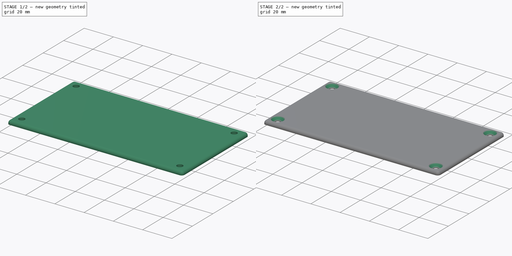
[diagram: build sequence overview — one tinted view per stage of 2, left to right]
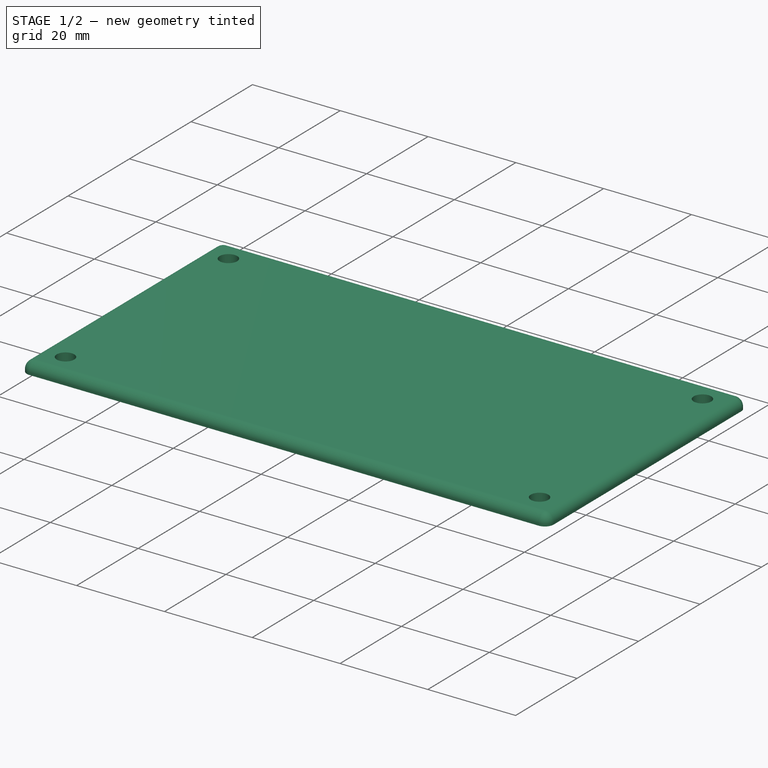
[diagram: stage 1 of 2 — iso view after this stage's code; geometry added in this stage tinted green]
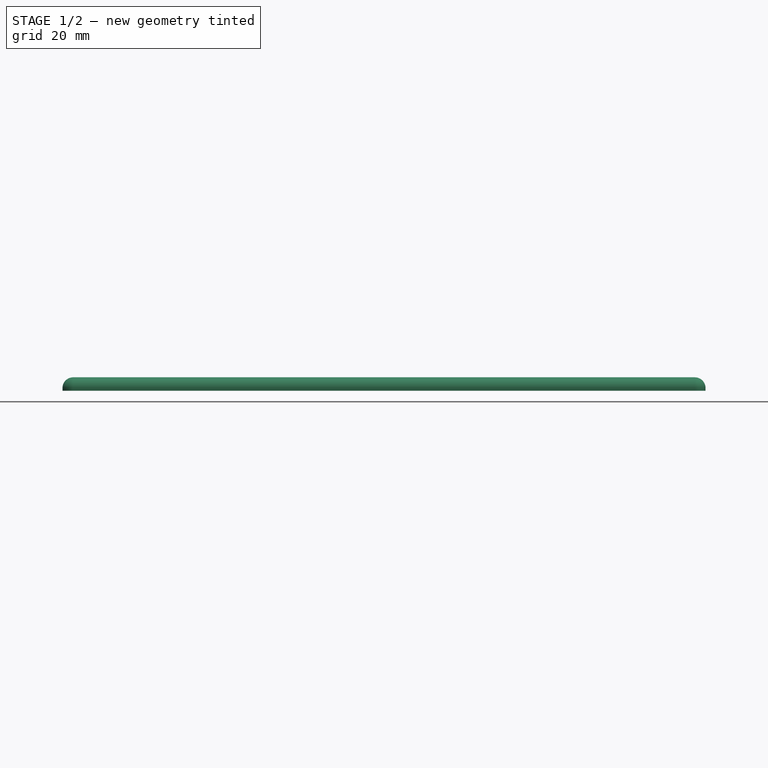
[diagram: stage 1 of 2 — front view after this stage's code; geometry added in this stage tinted green]
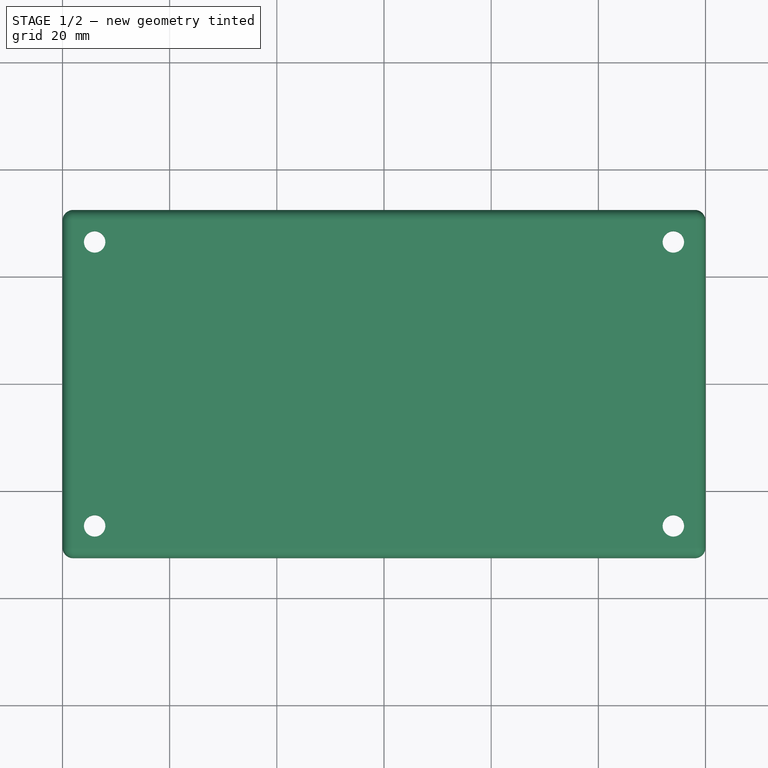
[diagram: stage 1 of 2 — top view after this stage's code; geometry added in this stage tinted green]
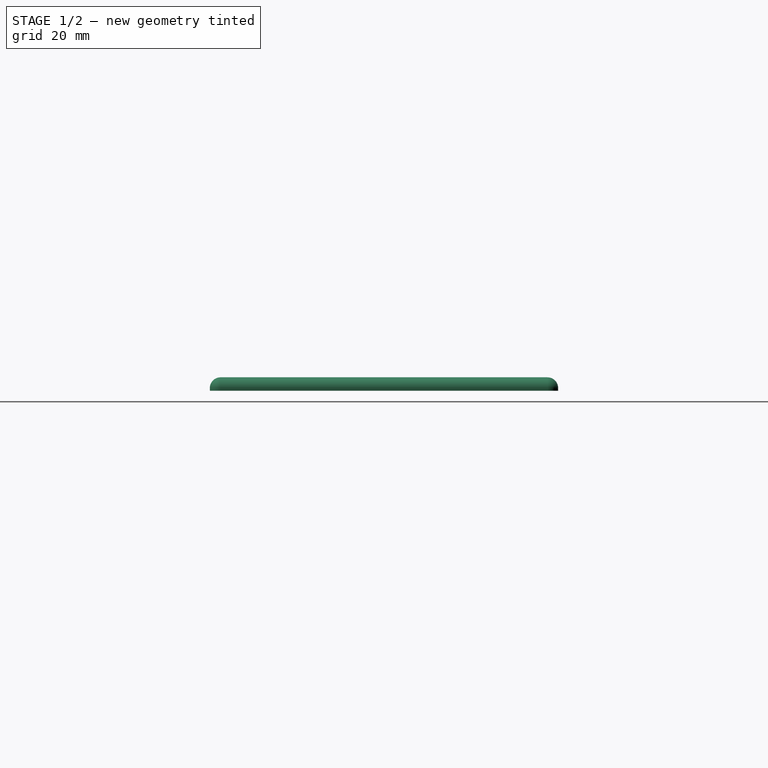
[diagram: stage 1 of 2 — right view after this stage's code; geometry added in this stage tinted green]
FCSTD DOCUMENT  (FreeCAD 0.20R29410 (Git))
Label: wall mount plate
License: All rights reserved
LicenseURL: http://en.wikipedia.org/wiki/All_rights_reserved
objects: Sketcher::SketchObject×1, PartDesign::Pad×1, PartDesign::Fillet×1, PartDesign::Chamfer×1, PartDesign::Body×1, App::Part×1
note: 8 computed .brp shape members not serialized (recipe doc carries the construction recipe); baked Part::Feature solids carry a one-line shape summary decoded from their .brp

FEATURE [Sketcher::SketchObject] Sketch
  FullyConstrained = true
  MapMode = 5
  Support = -> [XY_Plane001]
  sketch-geometry (14):
    g0: LineSegment StartX=-60 StartY=-32.5 StartZ=0 EndX=-60 EndY=32.5 EndZ=0
    g1: LineSegment StartX=-60 StartY=32.5 StartZ=0 EndX=60 EndY=32.5 EndZ=0
    g2: LineSegment StartX=60 StartY=32.5 StartZ=0 EndX=60 EndY=-32.5 EndZ=0
    g3: LineSegment StartX=60 StartY=-32.5 StartZ=0 EndX=-60 EndY=-32.5 EndZ=0
    g4: GeomPoint X=-2e-16 Y=0 Z=0
    g5: LineSegment StartX=-54 StartY=-26.5 StartZ=0 EndX=-54 EndY=26.5 EndZ=0
    g6: LineSegment StartX=-54 StartY=26.5 StartZ=0 EndX=54 EndY=26.5 EndZ=0
    g7: LineSegment StartX=54 StartY=26.5 StartZ=0 EndX=54 EndY=-26.5 EndZ=0
    g8: LineSegment StartX=54 StartY=-26.5 StartZ=0 EndX=-54 EndY=-26.5 EndZ=0
    g9: GeomPoint X=-2e-16 Y=0 Z=0
    g10: Circle CenterX=-54 CenterY=26.5 CenterZ=0 NormalX=0 NormalY=0 NormalZ=1 AngleXU=0 Radius=2
    g11: Circle CenterX=-54 CenterY=-26.5 CenterZ=0 NormalX=0 NormalY=0 NormalZ=1 AngleXU=0 Radius=2
    g12: Circle CenterX=54 CenterY=-26.5 CenterZ=0 NormalX=0 NormalY=0 NormalZ=1 AngleXU=0 Radius=2
    g13: Circle CenterX=54 CenterY=26.5 CenterZ=0 NormalX=0 NormalY=0 NormalZ=1 AngleXU=0 Radius=2
  constraints (32):
    c: Coincident(g0,g1)
    c: Coincident(g1,g2)
    c: Coincident(g2,g3)
    c: Coincident(g3,g0)
    c: Horizontal(g1)
    c: Horizontal(g3)
    c: Vertical(g0)
    c: Vertical(g2)
    c: Symmetric(g1,g0,g4)
    c: Coincident(g4,g-1)
    c: Distance(g0) = 65
    c: Distance(g1) = 120
    c: Coincident(g5,g6)
    c: Coincident(g6,g7)
    c: Coincident(g7,g8)
    c: Coincident(g8,g5)
    c: Horizontal(g6)
    c: Horizontal(g8)
    c: Vertical(g5)
    c: Vertical(g7)
    c: Symmetric(g6,g5,g9)
    c: Coincident(g9,g4)
    c: Coincident(g10,g5)
    c: Coincident(g11,g5)
    c: Coincident(g12,g7)
    c: Coincident(g13,g6)
    c: Distance(g5) = 53
    c: Distance(g6) = 108
    c: Diameter(g10) = 4
    c: Equal(g11,g12)
    c: Equal(g11,g13)
    c: Diameter(g11) = 4
FEATURE [PartDesign::Pad] Pad
  Direction = (0,0,1)
  Length = 2.5
  Length2 = 10
  Profile = -> Sketch
  ReferenceAxis = -> Sketch [N_Axis]
  Type = 0
FEATURE [PartDesign::Fillet] Fillet
  Base = -> Pad [Edge1,Edge8,Edge5,Edge2,Edge4,Edge7,Edge10,Edge12]
  BaseFeature = -> Pad
  Radius = 2
  SupportTransform = false
  UseAllEdges = false
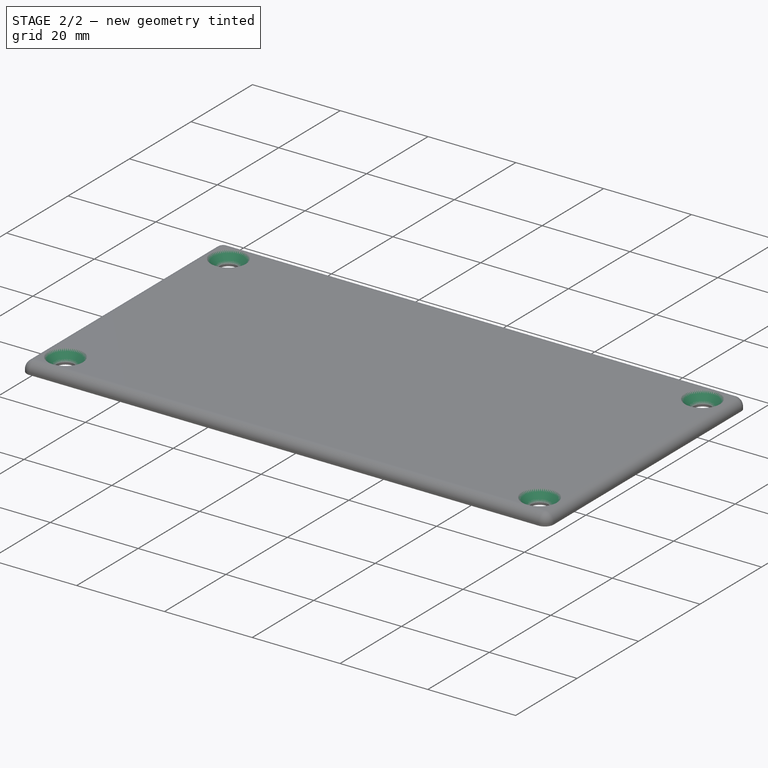
[diagram: stage 2 of 2 — iso view after this stage's code; geometry added in this stage tinted green]
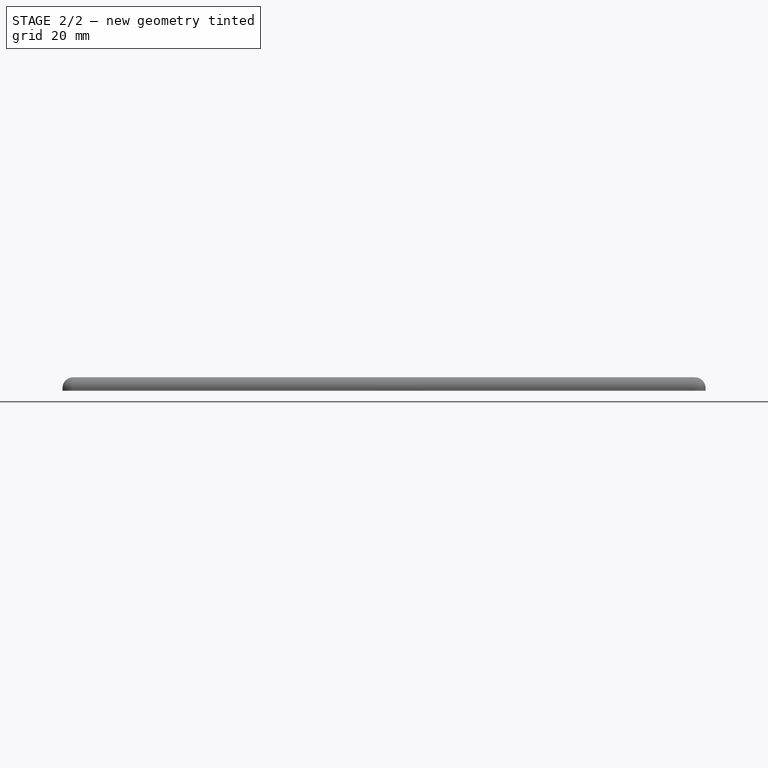
[diagram: stage 2 of 2 — front view after this stage's code; geometry added in this stage tinted green]
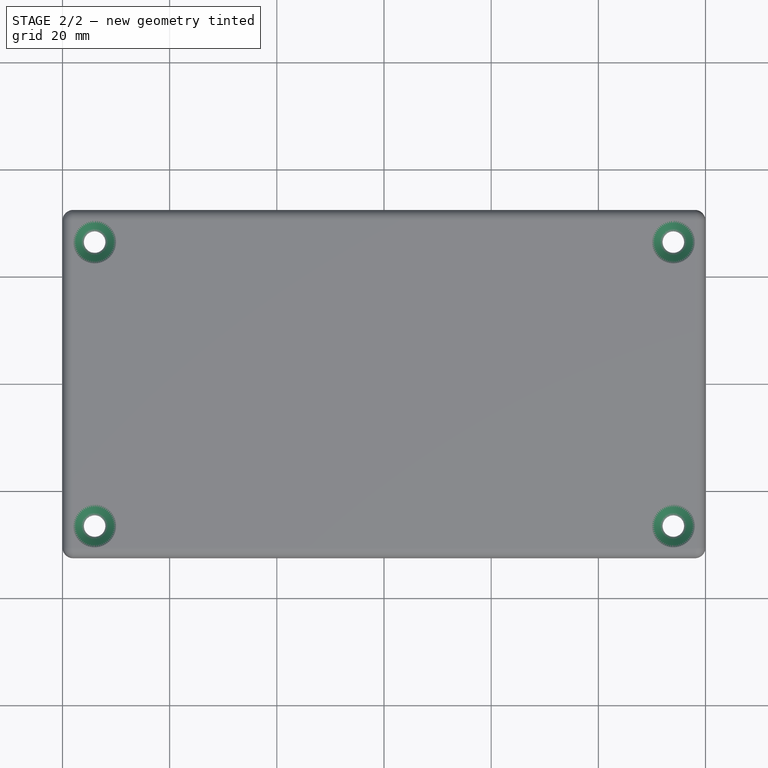
[diagram: stage 2 of 2 — top view after this stage's code; geometry added in this stage tinted green]
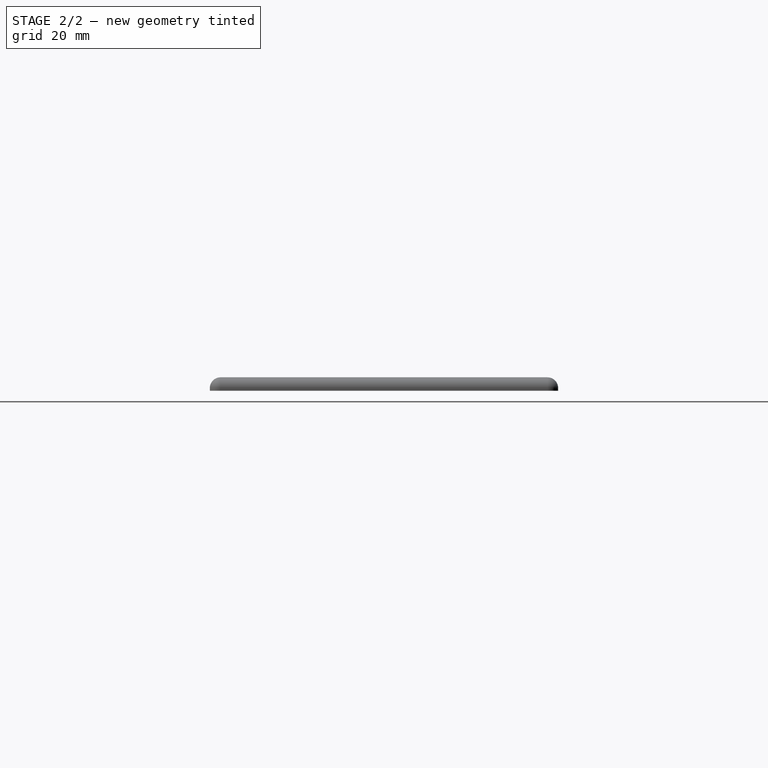
[diagram: stage 2 of 2 — right view after this stage's code; geometry added in this stage tinted green]
FEATURE [PartDesign::Chamfer] Chamfer
  Angle = 45
  Base = -> Fillet [Edge39,Edge37,Edge35,Edge33]
  BaseFeature = -> Fillet
  ChamferType = 0
  FlipDirection = false
  Size = 2
  Size2 = 1
  SupportTransform = false
  UseAllEdges = false
FEATURE [PartDesign::Body] Body
  Group = -> [Sketch,Pad,Fillet,Chamfer]
  Origin = -> Origin001
  Tip = -> Chamfer
FEATURE [App::Part] Part
  Group = -> [Body]
  Origin = -> Origin
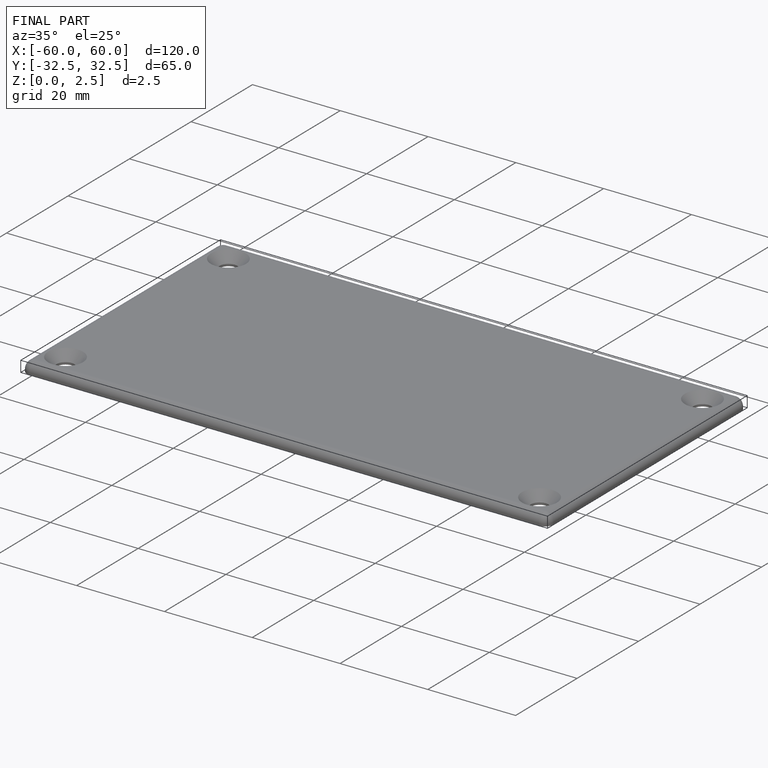
[diagram: finished part — iso view with bounding-box wireframe]
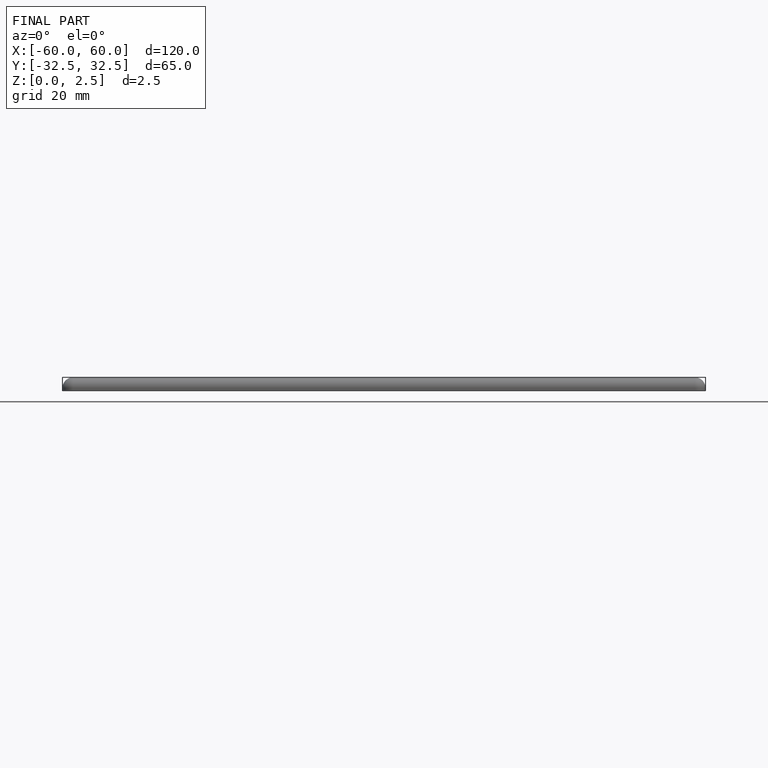
[diagram: finished part — front view with bounding-box wireframe]
